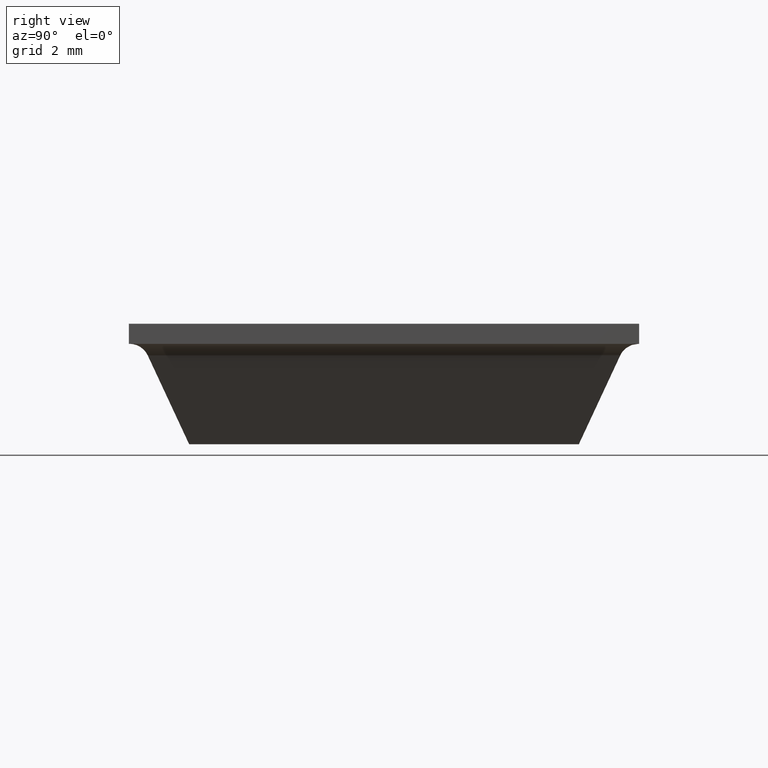
[diagram: clean part render]
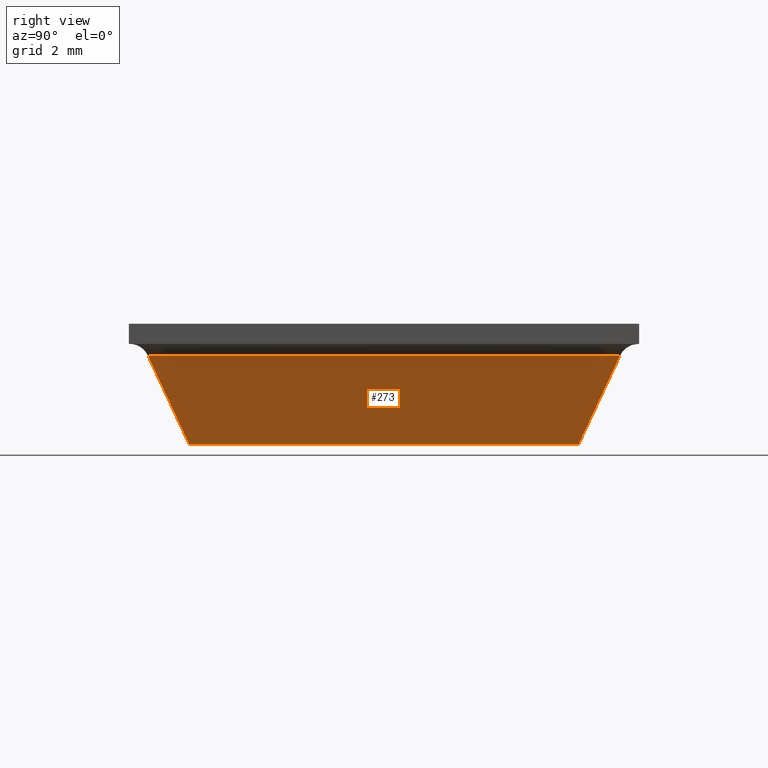
[diagram: same view with one face highlighted and labeled with its STEP entity id]
A machine part, right view. The second image highlights one B-rep face of the part: STEP entity #273.
In plain terms, the highlighted face is a freeform B-spline surface patch.
Its self-contained STEP definition (entity closure, byte-faithful):
#121=CARTESIAN_POINT('',(5.881150035810720,5.881150035810859,2.211309076796675));
#122=VERTEX_POINT('',#121);
#164=CARTESIAN_POINT('',(5.881150035810859,-5.881150035810720,2.211309076796675));
#165=VERTEX_POINT('',#164);
#216=CARTESIAN_POINT('',(5.881150035810720,5.881150035810859,2.211309076796675));
#217=CARTESIAN_POINT('',(5.881150035810859,-5.881150035810720,2.211309076796675));
#218=QUASI_UNIFORM_CURVE('',1,(#216,#217),.UNSPECIFIED.,.F.,.U.);
#219=EDGE_CURVE('',#122,#165,#218,.T.);
#229=CARTESIAN_POINT('',(4.850000000000001,-4.850000000000001,0.0));
#230=VERTEX_POINT('',#229);
#231=CARTESIAN_POINT('',(5.881150035810859,-5.881150035810720,2.211309076796675));
#232=CARTESIAN_POINT('',(4.850000000000001,-4.850000000000001,0.0));
#233=QUASI_UNIFORM_CURVE('',1,(#231,#232),.UNSPECIFIED.,.F.,.U.);
#234=EDGE_CURVE('',#165,#230,#233,.T.);
#252=CARTESIAN_POINT('',(4.798494034666426,-6.468677122422712,-0.110454933516772));
#253=CARTESIAN_POINT('',(5.932656084117236,-6.468677122422712,2.321764188249238));
#254=CARTESIAN_POINT('',(4.798494034666426,6.468677227586009,-0.110454933516772));
#255=CARTESIAN_POINT('',(5.932656084117236,6.468677227586009,2.321764188249238));
#256=B_SPLINE_SURFACE_WITH_KNOTS('',1,1,((#252,#254),(#253,#255)),.UNSPECIFIED.,.F.,.F.,.U.,(2,2),(2,2),(0.0,2.683656723707167),(0.0,12.937354350008720),.UNSPECIFIED.);
#257=CARTESIAN_POINT('',(4.850000000000001,4.850000000000001,0.0));
#258=VERTEX_POINT('',#257);
#259=CARTESIAN_POINT('',(5.881150035810720,5.881150035810859,2.211309076796675));
#260=CARTESIAN_POINT('',(4.850000000000001,4.850000000000001,0.0));
#261=QUASI_UNIFORM_CURVE('',1,(#259,#260),.UNSPECIFIED.,.F.,.U.);
#262=EDGE_CURVE('',#122,#258,#261,.T.);
#263=ORIENTED_EDGE('',*,*,#262,.F.);
#264=ORIENTED_EDGE('',*,*,#219,.T.);
#265=ORIENTED_EDGE('',*,*,#234,.T.);
#266=CARTESIAN_POINT('',(4.850000000000001,4.850000000000001,0.0));
#267=CARTESIAN_POINT('',(4.850000000000001,-4.850000000000001,0.0));
#268=QUASI_UNIFORM_CURVE('',1,(#266,#267),.UNSPECIFIED.,.F.,.U.);
#269=EDGE_CURVE('',#258,#230,#268,.T.);
#270=ORIENTED_EDGE('',*,*,#269,.F.);
#271=EDGE_LOOP('',(#263,#264,#265,#270));
#272=FACE_OUTER_BOUND('',#271,.T.);
#273=ADVANCED_FACE('',(#272),#256,.F.);